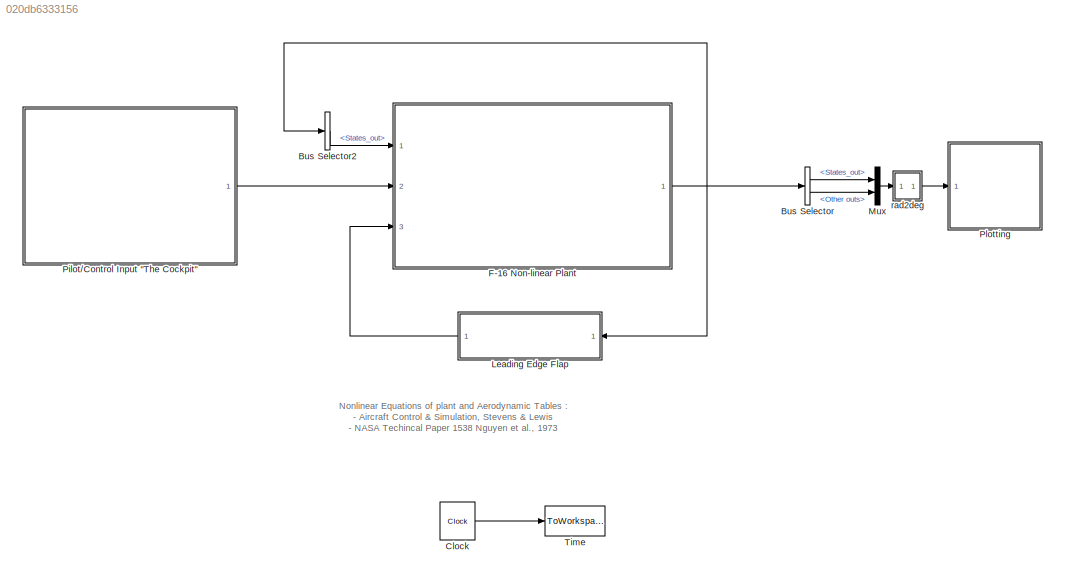
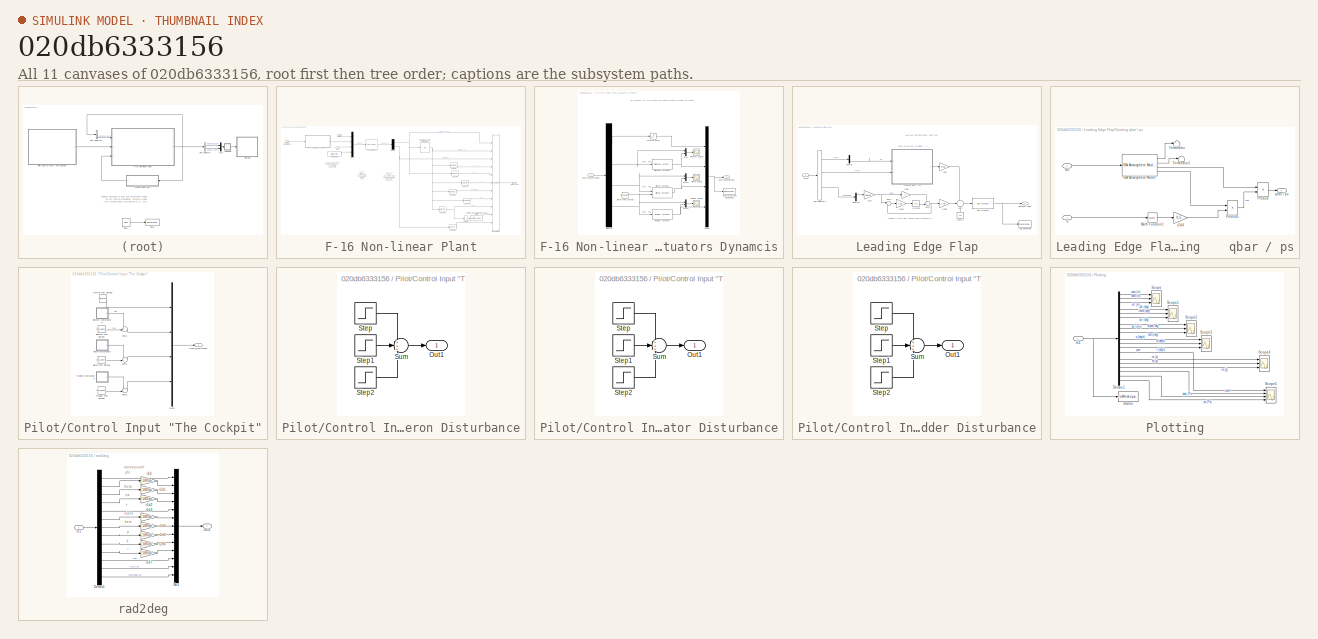
[diagram: thumbnail index - all 11 canvases of the model, root first then tree order]
MODEL slx_020db6333156
KIND model
BLOCK [BusSelector] Bus Selector
  OutputSignals = States_out,Other outs
  Ports = [1, 2]
BLOCK [BusSelector] Bus Selector2
  OutputSignals = States_out
  Ports = [1, 1]
BLOCK [Clock] Clock
  Decimation = 50
  DisplayTime = on
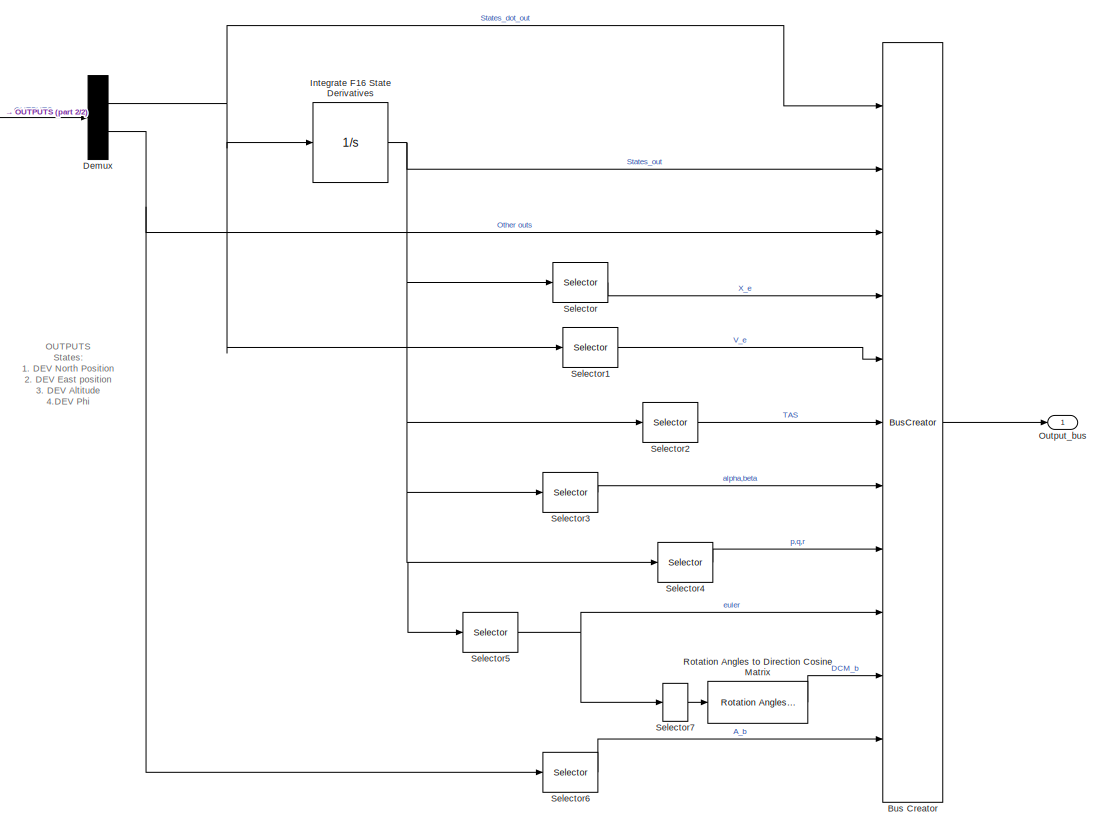
[diagram: F-16 Non-linear Plant - part 1/2, right side, full height]
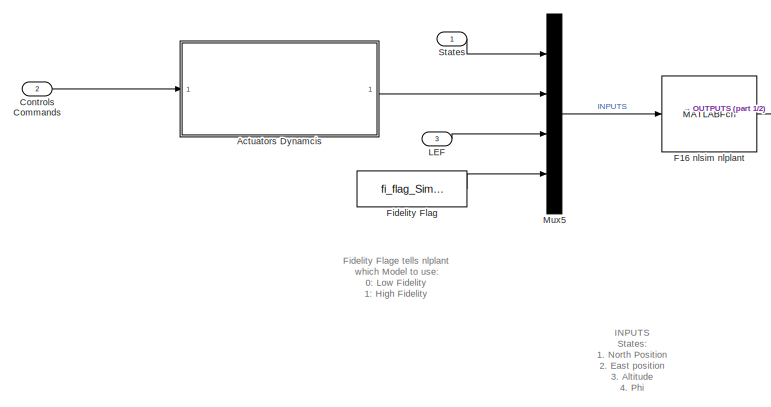
[diagram: F-16 Non-linear Plant - part 2/2, top left region]
BLOCK [SubSystem] F-16 Non-linear Plant
  FunctionWithSeparateData = off
  MaskHideContents = off
  MinAlgLoopOccurrences = off
  Opaque = off
  Ports = [3, 1]
  PropExecContextOutsideSubsystem = off
  RTWSystemCode = Auto
  RequestExecContextInheritance = off
BLOCK [SubSystem] F-16 Non-linear Plant/Actuators Dynamcis
  FunctionWithSeparateData = off
  MaskHideContents = off
  MinAlgLoopOccurrences = off
  Opaque = off
  Ports = [1, 1]
  PropExecContextOutsideSubsystem = off
  RTWSystemCode = Auto
  RequestExecContextInheritance = off
  TreatAsAtomicUnit = on
BLOCK [Reference] F-16 Non-linear Plant/Actuators Dynamcis/Aileron Actuator  REF=F16_Actuator_Library/Aileron
Actuator
  Ports = [2, 1]
  SourceBlock = F16_Actuator_Library/Aileron\nActuator
  SourceType = SubSystem
BLOCK [Scope] F-16 Non-linear Plant/Actuators Dynamcis/Aileron Scope
  DataFormat = StructureWithTime
  Floating = off
  NumInputPorts = 1
  Ports = [1]
  SampleTime = 0
  SaveName = ScopeData9
  ShowLegends = off
  TimeRange = 30
BLOCK [Constant] F-16 Non-linear Plant/Actuators Dynamcis/Aileron Trim Setting
  Value = trim_control(2)
BLOCK [ToWorkspace] F-16 Non-linear Plant/Actuators Dynamcis/Control Surface Deflections
  Decimation = 100
  MaxDataPoints = inf
  Ports = [1]
  SampleTime = -1
  VariableName = surfaces
BLOCK [Inport] F-16 Non-linear Plant/Actuators Dynamcis/Control_commands
  IconDisplay = Port number
BLOCK [Outport] F-16 Non-linear Plant/Actuators Dynamcis/Control_deflections
  IconDisplay = Port number
BLOCK [Demux] F-16 Non-linear Plant/Actuators Dynamcis/Demux
  DisplayOption = bar
  Ports = [1, 4]
BLOCK [Reference] F-16 Non-linear Plant/Actuators Dynamcis/Elevator Actuator  REF=F16_Actuator_Library/Elevator
Actuator
  Ports = [1, 1]
  SourceBlock = F16_Actuator_Library/Elevator\nActuator
  SourceType = SubSystem
BLOCK [Scope] F-16 Non-linear Plant/Actuators Dynamcis/Elevator Scope
  DataFormat = StructureWithTime
  Floating = off
  LimitDataPoints = off
  NumInputPorts = 1
  Ports = [1]
  SampleTime = 0
  SaveName = ScopeData10
  ShowLegends = off
  TimeRange = 5
  YMax = -2.05537
  YMin = -2.05537
BLOCK [Mux] F-16 Non-linear Plant/Actuators Dynamcis/Mux
  DisplayOption = bar
  Inputs = 2
  Ports = [2, 1]
BLOCK [Mux] F-16 Non-linear Plant/Actuators Dynamcis/Mux1
  DisplayOption = bar
  Inputs = 2
  Ports = [2, 1]
BLOCK [Mux] F-16 Non-linear Plant/Actuators Dynamcis/Mux2
  DisplayOption = bar
  Ports = [4, 1]
BLOCK [Mux] F-16 Non-linear Plant/Actuators Dynamcis/Mux3
  DisplayOption = bar
  Inputs = 2
  Ports = [2, 1]
BLOCK [Reference] F-16 Non-linear Plant/Actuators Dynamcis/Rudder Actuator  REF=F16_Actuator_Library/Rudder
Actuator
  Ports = [1, 1]
  SourceBlock = F16_Actuator_Library/Rudder\nActuator
  SourceType = SubSystem
BLOCK [Scope] F-16 Non-linear Plant/Actuators Dynamcis/Rudder Scope
  DataFormat = StructureWithTime
  Floating = off
  NumInputPorts = 1
  Ports = [1]
  SampleTime = 0
  SaveName = ScopeData11
  ShowLegends = off
  YMax = 0.0727808
  YMin = 0.0727808
BLOCK [Saturate] F-16 Non-linear Plant/Actuators Dynamcis/Throttle Limits
  InputPortMap = u0
  LowerLimit = 0
  Ports = [1, 1]
  UpperLimit = 1
BLOCK [BusCreator] F-16 Non-linear Plant/Bus Creator
  DisplayOption = bar
  Inputs = 11
  Ports = [11, 1]
BLOCK [Inport] F-16 Non-linear Plant/Controls Commands
  IconDisplay = Port number
  Port = 2
BLOCK [Demux] F-16 Non-linear Plant/Demux
  Outputs = [13 6]
  Ports = [1, 2]
BLOCK [MATLABFcn] F-16 Non-linear Plant/F16 nlsim nlplant
  MATLABFcn = nlplant
  OutputDimensions = 19
  OutputSignalType = real
  Ports = [1, 1]
BLOCK [Constant] F-16 Non-linear Plant/Fidelity Flag
  Value = fi_flag_Simulink
BLOCK [Integrator] F-16 Non-linear Plant/Integrate F16 State Derivatives
  InitialCondition = trim_state
  Ports = [1, 1]
BLOCK [Inport] F-16 Non-linear Plant/LEF
  IconDisplay = Port number
  Port = 3
BLOCK [Mux] F-16 Non-linear Plant/Mux5
  DisplayOption = bar
  Inputs = [13 4 1 1]
  Ports = [4, 1]
BLOCK [Outport] F-16 Non-linear Plant/Output_bus
  IconDisplay = Port number
BLOCK [Reference] F-16 Non-linear Plant/Rotation Angles to Direction Cosine Matrix  REF=aerolibtransform2/Rotation Angles to
Direction Cosine Matrix
  AttributesFormatString = Rotation Order: %<rotationOrder>
  Ports = [1, 1]
  SourceBlock = aerolibtransform2/Rotation Angles to\nDirection Cosine Matrix
  SourceType = Ang2DCM
  rotationOrder = ZYX
BLOCK [Selector] F-16 Non-linear Plant/Selector
  IndexOptions = Index vector (dialog)
  Indices = [1:3]
  InputPortWidth = 13
  OutputSizes = 1
  Ports = [1, 1]
BLOCK [Selector] F-16 Non-linear Plant/Selector1
  IndexOptions = Index vector (dialog)
  Indices = [1:3]
  InputPortWidth = 13
  OutputSizes = 1
  Ports = [1, 1]
BLOCK [Selector] F-16 Non-linear Plant/Selector2
  IndexOptions = Index vector (dialog)
  Indices = [7]
  InputPortWidth = 13
  OutputSizes = 1
  Ports = [1, 1]
BLOCK [Selector] F-16 Non-linear Plant/Selector3
  IndexOptions = Index vector (dialog)
  Indices = [8:9]
  InputPortWidth = 13
  OutputSizes = 1
  Ports = [1, 1]
BLOCK [Selector] F-16 Non-linear Plant/Selector4
  IndexOptions = Index vector (dialog)
  Indices = [10:12]
  InputPortWidth = 13
  OutputSizes = 1
  Ports = [1, 1]
BLOCK [Selector] F-16 Non-linear Plant/Selector5
  IndexOptions = Index vector (dialog)
  Indices = [4:6]
  InputPortWidth = 13
  OutputSizes = 1
  Ports = [1, 1]
BLOCK [Selector] F-16 Non-linear Plant/Selector6
  IndexOptions = Index vector (dialog)
  Indices = [1:3]
  InputPortWidth = 6
  OutputSizes = 1
  Ports = [1, 1]
BLOCK [Selector] F-16 Non-linear Plant/Selector7
  IndexOptions = Index vector (dialog)
  Indices = [3 2 1]
  InputPortWidth = 3
  OutputSizes = 1
  Ports = [1, 1]
BLOCK [Inport] F-16 Non-linear Plant/States
  IconDisplay = Port number
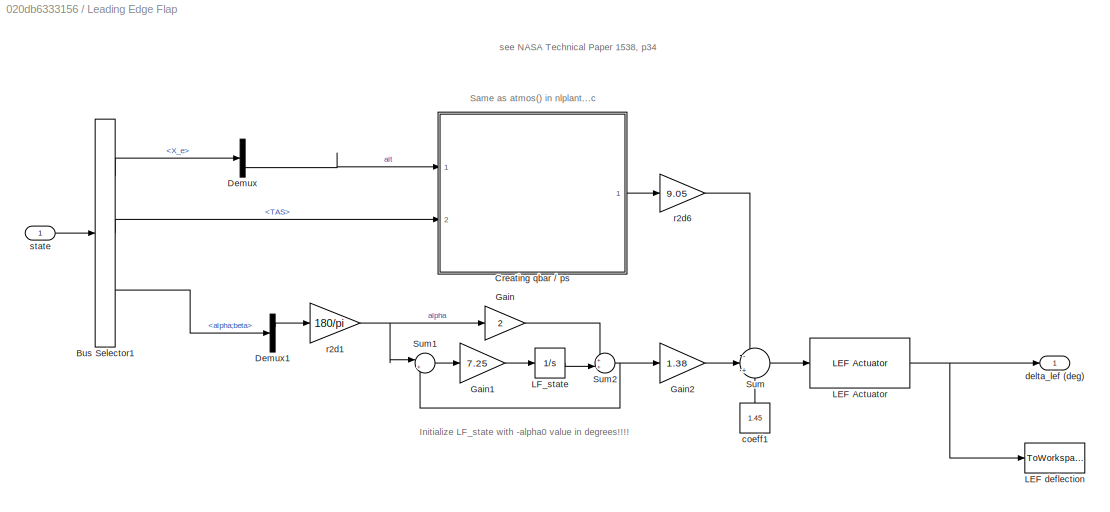
BLOCK [SubSystem] Leading Edge Flap
  FunctionWithSeparateData = off
  MaskHideContents = off
  MinAlgLoopOccurrences = off
  Opaque = off
  Ports = [1, 1]
  PropExecContextOutsideSubsystem = off
  RTWSystemCode = Auto
  RequestExecContextInheritance = off
BLOCK [BusSelector] Leading Edge Flap/Bus Selector1
  OutputSignals = X_e,TAS,alpha;beta
  Ports = [1, 3]
BLOCK [SubSystem] Leading Edge Flap/Creating    qbar // ps
  FunctionWithSeparateData = off
  MaskHideContents = off
  MinAlgLoopOccurrences = off
  Opaque = off
  Ports = [2, 1]
  PropExecContextOutsideSubsystem = off
  RTWSystemCode = Auto
  RequestExecContextInheritance = off
BLOCK [Reference] Leading Edge Flap/Creating    qbar // ps/ISA Atmosphere Model  REF=aerolibatmos2/ISA Atmosphere Model
  L = 0.0065
  P0 = 101325
  Ports = [1, 4]
  R = 287.0531
  SourceBlock = aerolibatmos2/ISA Atmosphere Model
  SourceType = International Standard Atmosphere Model
  T0 = 288.15
  custom = off
  g = 9.80665
  gamma = 1.4
  h_strat = 20000
  h_trop = 11000
  rho0 = 1.225
BLOCK [Math] Leading Edge Flap/Creating    qbar // ps/Math Function1
  Operator = square
  Ports = [1, 1]
BLOCK [Product] Leading Edge Flap/Creating    qbar // ps/Product
  Inputs = /*
  Ports = [2, 1]
  RndMeth = Floor
BLOCK [Product] Leading Edge Flap/Creating    qbar // ps/Product5
  Inputs = **
  Ports = [2, 1]
  RndMeth = Floor
BLOCK [Terminator] Leading Edge Flap/Creating    qbar // ps/Terminator
BLOCK [Terminator] Leading Edge Flap/Creating    qbar // ps/Terminator1
BLOCK [Inport] Leading Edge Flap/Creating    qbar // ps/V
  IconDisplay = Port number
  Port = 2
BLOCK [Inport] Leading Edge Flap/Creating    qbar // ps/alt
  IconDisplay = Port number
BLOCK [Outport] Leading Edge Flap/Creating    qbar // ps/qbar // ps
  IconDisplay = Port number
BLOCK [Gain] Leading Edge Flap/Creating    qbar // ps/r2d4
  Gain = 0.5
BLOCK [Demux] Leading Edge Flap/Demux
  DisplayOption = bar
  Outputs = 3
  Ports = [1, 3]
BLOCK [Demux] Leading Edge Flap/Demux1
  DisplayOption = bar
  Outputs = 2
  Ports = [1, 2]
BLOCK [Gain] Leading Edge Flap/Gain
  Gain = 2
BLOCK [Gain] Leading Edge Flap/Gain1
  Gain = 7.25
BLOCK [Gain] Leading Edge Flap/Gain2
  Gain = 1.38
BLOCK [Reference] Leading Edge Flap/LEF Actuator  REF=F16_Actuator_Library/LEF
Actuator
  Ports = [1, 1]
  SourceBlock = F16_Actuator_Library/LEF\nActuator
  SourceType = SubSystem
BLOCK [ToWorkspace] Leading Edge Flap/LEF deflection
  Decimation = 100
  MaxDataPoints = inf
  Ports = [1]
  SampleTime = -1
  VariableName = d_LF
BLOCK [Integrator] Leading Edge Flap/LF_state
  InitialCondition = -trim_state(8)*180/pi
  Ports = [1, 1]
BLOCK [Sum] Leading Edge Flap/Sum
  IconShape = round
  Inputs = -|+|+
  Ports = [3, 1]
BLOCK [Sum] Leading Edge Flap/Sum1
  IconShape = round
  Inputs = |+-
  Ports = [2, 1]
BLOCK [Sum] Leading Edge Flap/Sum2
  IconShape = round
  Inputs = ++|
  Ports = [2, 1]
BLOCK [Constant] Leading Edge Flap/coeff1
  Value = 1.45
BLOCK [Outport] Leading Edge Flap/delta_lef (deg)
  IconDisplay = Port number
BLOCK [Gain] Leading Edge Flap/r2d1
  Gain = 180/pi
BLOCK [Gain] Leading Edge Flap/r2d6
  Gain = 9.05
BLOCK [Inport] Leading Edge Flap/state
  IconDisplay = Port number
BLOCK [Mux] Mux
  DisplayOption = bar
  Inputs = 2
  Ports = [2, 1]
BLOCK [SubSystem] Pilot//Control Input "The Cockpit"
  FunctionWithSeparateData = off
  MaskHideContents = off
  MinAlgLoopOccurrences = off
  Opaque = off
  Ports = [0, 1]
  PropExecContextOutsideSubsystem = off
  RTWSystemCode = Auto
  RequestExecContextInheritance = off
BLOCK [SubSystem] Pilot//Control Input "The Cockpit"/Aileron Disturbance
  FunctionWithSeparateData = off
  MaskHideContents = off
  MinAlgLoopOccurrences = off
  Opaque = off
  Ports = [0, 1]
  PropExecContextOutsideSubsystem = off
  RTWSystemCode = Auto
  RequestExecContextInheritance = off
BLOCK [Outport] Pilot//Control Input "The Cockpit"/Aileron Disturbance/Out1
  IconDisplay = Port number
BLOCK [Step] Pilot//Control Input "The Cockpit"/Aileron Disturbance/Step
  After = DisAil_1
  SampleTime = 0
BLOCK [Step] Pilot//Control Input "The Cockpit"/Aileron Disturbance/Step1
  After = DisAil_2
  SampleTime = 0
  Time = 3
BLOCK [Step] Pilot//Control Input "The Cockpit"/Aileron Disturbance/Step2
  After = DisAil_3
  SampleTime = 0
  Time = 5
BLOCK [Sum] Pilot//Control Input "The Cockpit"/Aileron Disturbance/Sum
  IconShape = round
  Inputs = +++
  Ports = [3, 1]
BLOCK [Constant] Pilot//Control Input "The Cockpit"/Aileron Trim Setting
  Value = trim_control(2)
BLOCK [Outport] Pilot//Control Input "The Cockpit"/Control_commands
  IconDisplay = Port number
BLOCK [SubSystem] Pilot//Control Input "The Cockpit"/Elevator Disturbance
  FunctionWithSeparateData = off
  MaskHideContents = off
  MinAlgLoopOccurrences = off
  Opaque = off
  Ports = [0, 1]
  PropExecContextOutsideSubsystem = off
  RTWSystemCode = Auto
  RequestExecContextInheritance = off
BLOCK [Outport] Pilot//Control Input "The Cockpit"/Elevator Disturbance/Out1
  IconDisplay = Port number
BLOCK [Step] Pilot//Control Input "The Cockpit"/Elevator Disturbance/Step
  After = DisEle_1
  SampleTime = 0
BLOCK [Step] Pilot//Control Input "The Cockpit"/Elevator Disturbance/Step1
  After = DisEle_2
  SampleTime = 0
  Time = 3
BLOCK [Step] Pilot//Control Input "The Cockpit"/Elevator Disturbance/Step2
  After = DisEle_3
  SampleTime = 0
  Time = 5
BLOCK [Sum] Pilot//Control Input "The Cockpit"/Elevator Disturbance/Sum
  IconShape = round
  Inputs = +++
  Ports = [3, 1]
BLOCK [Constant] Pilot//Control Input "The Cockpit"/Elevator Trim Setting
  Value = trim_control(1)
  VectorParams1D = off
BLOCK [Mux] Pilot//Control Input "The Cockpit"/Mux2
  DisplayOption = bar
  Ports = [4, 1]
BLOCK [SubSystem] Pilot//Control Input "The Cockpit"/Rudder Disturbance
  FunctionWithSeparateData = off
  MaskHideContents = off
  MinAlgLoopOccurrences = off
  Opaque = off
  Ports = [0, 1]
  PropExecContextOutsideSubsystem = off
  RTWSystemCode = Auto
  RequestExecContextInheritance = off
BLOCK [Outport] Pilot//Control Input "The Cockpit"/Rudder Disturbance/Out1
  IconDisplay = Port number
BLOCK [Step] Pilot//Control Input "The Cockpit"/Rudder Disturbance/Step
  After = DisRud_1
  SampleTime = 0
BLOCK [Step] Pilot//Control Input "The Cockpit"/Rudder Disturbance/Step1
  After = DisRud_2
  SampleTime = 0
  Time = 3
BLOCK [Step] Pilot//Control Input "The Cockpit"/Rudder Disturbance/Step2
  After = DisRud_3
  SampleTime = 0
  Time = 5
BLOCK [Sum] Pilot//Control Input "The Cockpit"/Rudder Disturbance/Sum
  IconShape = round
  Inputs = +++
  Ports = [3, 1]
BLOCK [Constant] Pilot//Control Input "The Cockpit"/Rudder Trim Setting
  Value = trim_control(3)
BLOCK [Sum] Pilot//Control Input "The Cockpit"/Sum1
  IconShape = round
  Inputs = ++|
  Ports = [2, 1]
BLOCK [Sum] Pilot//Control Input "The Cockpit"/Sum2
  IconShape = round
  Inputs = ++|
  Ports = [2, 1]
BLOCK [Sum] Pilot//Control Input "The Cockpit"/Sum3
  IconShape = round
  Inputs = ++|
  Ports = [2, 1]
BLOCK [Constant] Pilot//Control Input "The Cockpit"/throttle Trim Setting
  Value = trim_throttle
BLOCK [SubSystem] Plotting
  FunctionWithSeparateData = off
  MaskHideContents = off
  MinAlgLoopOccurrences = off
  Opaque = off
  Ports = [1]
  PropExecContextOutsideSubsystem = off
  RTWSystemCode = Auto
  RequestExecContextInheritance = off
BLOCK [Demux] Plotting/Demux1
  Outputs = 19
  Ports = [1, 19]
BLOCK [Inport] Plotting/In1
  IconDisplay = Port number
BLOCK [Scope] Plotting/Scope
  DataFormat = StructureWithTime
  Decimation = 20
  Floating = off
  LimitDataPoints = off
  NumInputPorts = 3
  Ports = [3]
  SampleTime = 0
  ShowLegends = off
  YMax = 13700~8.75e-11~13320
  YMin = 12100~6e-11~13235
BLOCK [Scope] Plotting/Scope1
  DataFormat = StructureWithTime
  Decimation = 20
  Floating = off
  LimitDataPoints = off
  NumInputPorts = 3
  Ports = [3]
  SampleTime = 0
  SaveName = ScopeData1
  ShowLegends = off
  TimeRange = 10
  YMax = -0.000465~3.88952~-0.000275
  YMin = -0.000525~3.88949~-0.00034
BLOCK [Scope] Plotting/Scope2
  DataFormat = StructureWithTime
  Decimation = 20
  Floating = off
  LimitDataPoints = off
  NumInputPorts = 3
  Ports = [3]
  SampleTime = 0
  SaveName = ScopeData2
  ShowLegends = off
  YMax = 160.001~3.89042~-0.337004
  YMin = 160~3.89041~-0.337005
  ZoomMode = xonly
BLOCK [Scope] Plotting/Scope3
  DataFormat = StructureWithTime
  Decimation = 20
  Floating = off
  LimitDataPoints = off
  NumInputPorts = 3
  Ports = [3]
  SampleTime = 0
  SaveName = ScopeData3
  ShowLegends = off
  YMax = 5~5~5
  YMin = -5~-5~-5
BLOCK [Scope] Plotting/Scope4
  DataFormat = StructureWithTime
  Decimation = 20
  Floating = off
  LimitDataPoints = off
  NumInputPorts = 3
  Ports = [3]
  SampleTime = 0
  SaveName = ScopeData4
  ShowLegends = off
  YMax = 5~5~5
  YMin = -5~-5~-5
BLOCK [Scope] Plotting/Scope5
  DataFormat = StructureWithTime
  Floating = off
  LegendLocations = 0.89053     0.91569     0.11694    0.030669\n0.88383       0.683     0.12594    0.030669\n0.86822      0.4503     0.14693    0.030669\n0.87603     0.21908     0.13643    0.030669
  NumInputPorts = 4
  Ports = [4]
  SampleTime = 0
  SaveName = ScopeData5
  ShowLegends = on
  YMax = 13.2562~0.507~10600~58900
  YMin = 13.2562~0.495~10000~58450
BLOCK [ToWorkspace] Plotting/States
  Decimation = 100
  MaxDataPoints = inf
  Ports = [1]
  SampleTime = -1
  VariableName = y_sim
BLOCK [ToWorkspace] Time
  Decimation = 100
  MaxDataPoints = inf
  Ports = [1]
  SampleTime = -1
  VariableName = T
BLOCK [SubSystem] rad2deg
  FunctionWithSeparateData = off
  MaskHideContents = off
  MinAlgLoopOccurrences = off
  Opaque = off
  Ports = [1, 1]
  PropExecContextOutsideSubsystem = off
  RTWSystemCode = Auto
  RequestExecContextInheritance = off
BLOCK [Demux] rad2deg/Demux1
  Outputs = [3 1 1 1 1 1 1 1 1 1 1 3 3]
  Ports = [1, 13]
BLOCK [Inport] rad2deg/In1
  IconDisplay = Port number
BLOCK [Mux] rad2deg/Mux
  DisplayOption = bar
  Inputs = [3 1 1 1 1 1 1 1 1 1 1 3 3]
  Ports = [13, 1]
BLOCK [Outport] rad2deg/Out1
  IconDisplay = Port number
BLOCK [Gain] rad2deg/r2d
  Gain = 180/pi
BLOCK [Gain] rad2deg/r2d1
  Gain = 180/pi
BLOCK [Gain] rad2deg/r2d2
  Gain = 180/pi
BLOCK [Gain] rad2deg/r2d3
  Gain = 180/pi
BLOCK [Gain] rad2deg/r2d4
  Gain = 180/pi
BLOCK [Gain] rad2deg/r2d5
  Gain = 180/pi
BLOCK [Gain] rad2deg/r2d6
  Gain = 180/pi
BLOCK [Gain] rad2deg/r2d7
  Gain = 180/pi
ANNOTATION (root): Nonlinear Equations of plant and Aerodynamic Tables : - Aircraft Control & Simulation, Stevens & Lewis - NASA Techincal Paper 1538 Nguyen et al., 1973
ANNOTATION F-16 Non-linear Plant: Fidelity Flage tells nlplant which Model to use: 0: Low Fidelity 1: High Fidelity
ANNOTATION F-16 Non-linear Plant: INPUTS States: 1. North Position 2. East position 3. Altitude 4. Phi 5. Theta 6. Psi 7. Total velocity 8. alpha in rad 9. beta in rads 10. P 11. Q 12. R 13. POW Controls: 14. Thrust 15. Elevator in deg 16. Ailerons in deg 17. Rudder in deg 18. LEF in deg 19. Fidelity Flag
ANNOTATION F-16 Non-linear Plant: OUTPUTS States: 1. DEV North Position 2. DEV East position 3. DEV Altitude 4.DEV Phi 5. DEV Theta 6. DEV Psi 7. DEV Total velocity 8.DEV alpha in rad 9.DEV beta in rads 10. DEV P 11. DEV Q 12. DEV R 13. DEV POW Other outputs: Accels of CG: 14. anx_cg 15. any_cg 16. anz_cg 17. mach 18. qbar 19. ps Static Pressure
ANNOTATION F-16 Non-linear Plant/Actuators Dynamcis: No dynamics for thrttle since the engine dynamics is inside the model
ANNOTATION F-16 Non-linear Plant/Actuators Dynamcis: Units: deg.
ANNOTATION Leading Edge Flap: Initialize LF_state with -alpha0 value in degrees!!!!
ANNOTATION Leading Edge Flap: Same as atmos() in nlplant...c
ANNOTATION Leading Edge Flap: see NASA Technical Paper 1538, p34
ANNOTATION rad2deg: alpha
ANNOTATION rad2deg: beta
ANNOTATION rad2deg: npos,epos,alt
ANNOTATION rad2deg: p
ANNOTATION rad2deg: phi
ANNOTATION rad2deg: psi
ANNOTATION rad2deg: q
ANNOTATION rad2deg: r
ANNOTATION rad2deg: theta
ANNOTATION rad2deg: v
LINE Bus Selector2:1 -> F-16 Non-linear Plant:1
LINE Bus Selector:1 -> Mux:1
LINE Bus Selector:2 -> Mux:2
LINE Clock:1 -> Time:1
NET F-16 Non-linear Plant/Actuators Dynamcis/Aileron Actuator:1 -> F-16 Non-linear Plant/Actuators Dynamcis/Mux1:2, F-16 Non-linear Plant/Actuators Dynamcis/Mux2:3
LINE F-16 Non-linear Plant/Actuators Dynamcis/Aileron Trim Setting:1 -> F-16 Non-linear Plant/Actuators Dynamcis/Aileron Actuator:2
LINE F-16 Non-linear Plant/Actuators Dynamcis/Control_commands:1 -> F-16 Non-linear Plant/Actuators Dynamcis/Demux:1
LINE F-16 Non-linear Plant/Actuators Dynamcis/Demux:1 -> F-16 Non-linear Plant/Actuators Dynamcis/Throttle Limits:1
NET F-16 Non-linear Plant/Actuators Dynamcis/Demux:2 -> F-16 Non-linear Plant/Actuators Dynamcis/Elevator Actuator:1, F-16 Non-linear Plant/Actuators Dynamcis/Mux:1
NET F-16 Non-linear Plant/Actuators Dynamcis/Demux:3 -> F-16 Non-linear Plant/Actuators Dynamcis/Aileron Actuator:1, F-16 Non-linear Plant/Actuators Dynamcis/Mux1:1
NET F-16 Non-linear Plant/Actuators Dynamcis/Demux:4 -> F-16 Non-linear Plant/Actuators Dynamcis/Mux3:1, F-16 Non-linear Plant/Actuators Dynamcis/Rudder Actuator:1
NET F-16 Non-linear Plant/Actuators Dynamcis/Elevator Actuator:1 -> F-16 Non-linear Plant/Actuators Dynamcis/Mux2:2, F-16 Non-linear Plant/Actuators Dynamcis/Mux:2
LINE F-16 Non-linear Plant/Actuators Dynamcis/Mux1:1 -> F-16 Non-linear Plant/Actuators Dynamcis/Aileron Scope:1
NET F-16 Non-linear Plant/Actuators Dynamcis/Mux2:1 -> F-16 Non-linear Plant/Actuators Dynamcis/Control Surface Deflections:1, F-16 Non-linear Plant/Actuators Dynamcis/Control_deflections:1
LINE F-16 Non-linear Plant/Actuators Dynamcis/Mux3:1 -> F-16 Non-linear Plant/Actuators Dynamcis/Rudder Scope:1
LINE F-16 Non-linear Plant/Actuators Dynamcis/Mux:1 -> F-16 Non-linear Plant/Actuators Dynamcis/Elevator Scope:1
NET F-16 Non-linear Plant/Actuators Dynamcis/Rudder Actuator:1 -> F-16 Non-linear Plant/Actuators Dynamcis/Mux2:4, F-16 Non-linear Plant/Actuators Dynamcis/Mux3:2
LINE F-16 Non-linear Plant/Actuators Dynamcis/Throttle Limits:1 -> F-16 Non-linear Plant/Actuators Dynamcis/Mux2:1
LINE F-16 Non-linear Plant/Actuators Dynamcis:1 -> F-16 Non-linear Plant/Mux5:2
LINE F-16 Non-linear Plant/Bus Creator:1 -> F-16 Non-linear Plant/Output_bus:1
LINE F-16 Non-linear Plant/Controls Commands:1 -> F-16 Non-linear Plant/Actuators Dynamcis:1
NET F-16 Non-linear Plant/Demux:1 -> F-16 Non-linear Plant/Bus Creator:1, F-16 Non-linear Plant/Integrate F16 State Derivatives:1, F-16 Non-linear Plant/Selector1:1
NET F-16 Non-linear Plant/Demux:2 -> F-16 Non-linear Plant/Bus Creator:3, F-16 Non-linear Plant/Selector6:1
LINE F-16 Non-linear Plant/F16 nlsim nlplant:1 -> F-16 Non-linear Plant/Demux:1
LINE F-16 Non-linear Plant/Fidelity Flag:1 -> F-16 Non-linear Plant/Mux5:4
NET F-16 Non-linear Plant/Integrate F16 State Derivatives:1 -> F-16 Non-linear Plant/Bus Creator:2, F-16 Non-linear Plant/Selector2:1, F-16 Non-linear Plant/Selector3:1, F-16 Non-linear Plant/Selector4:1, F-16 Non-linear Plant/Selector5:1, F-16 Non-linear Plant/Selector:1
LINE F-16 Non-linear Plant/LEF:1 -> F-16 Non-linear Plant/Mux5:3
LINE F-16 Non-linear Plant/Mux5:1 -> F-16 Non-linear Plant/F16 nlsim nlplant:1
LINE F-16 Non-linear Plant/Rotation Angles to Direction Cosine Matrix:1 -> F-16 Non-linear Plant/Bus Creator:10
LINE F-16 Non-linear Plant/Selector1:1 -> F-16 Non-linear Plant/Bus Creator:5
LINE F-16 Non-linear Plant/Selector2:1 -> F-16 Non-linear Plant/Bus Creator:6
LINE F-16 Non-linear Plant/Selector3:1 -> F-16 Non-linear Plant/Bus Creator:7
LINE F-16 Non-linear Plant/Selector4:1 -> F-16 Non-linear Plant/Bus Creator:8
NET F-16 Non-linear Plant/Selector5:1 -> F-16 Non-linear Plant/Bus Creator:9, F-16 Non-linear Plant/Selector7:1
LINE F-16 Non-linear Plant/Selector6:1 -> F-16 Non-linear Plant/Bus Creator:11
LINE F-16 Non-linear Plant/Selector7:1 -> F-16 Non-linear Plant/Rotation Angles to Direction Cosine Matrix:1
LINE F-16 Non-linear Plant/Selector:1 -> F-16 Non-linear Plant/Bus Creator:4
LINE F-16 Non-linear Plant/States:1 -> F-16 Non-linear Plant/Mux5:1
NET F-16 Non-linear Plant:1 -> Bus Selector2:1, Bus Selector:1, Leading Edge Flap:1
LINE Leading Edge Flap/Bus Selector1:1 -> Leading Edge Flap/Demux:1
LINE Leading Edge Flap/Bus Selector1:2 -> Leading Edge Flap/Creating    qbar // ps:2
LINE Leading Edge Flap/Bus Selector1:3 -> Leading Edge Flap/Demux1:1
LINE Leading Edge Flap/Creating    qbar // ps/ISA Atmosphere Model:1 -> Leading Edge Flap/Creating    qbar // ps/Terminator:1
LINE Leading Edge Flap/Creating    qbar // ps/ISA Atmosphere Model:2 -> Leading Edge Flap/Creating    qbar // ps/Terminator1:1
LINE Leading Edge Flap/Creating    qbar // ps/ISA Atmosphere Model:3 -> Leading Edge Flap/Creating    qbar // ps/Product:1
LINE Leading Edge Flap/Creating    qbar // ps/ISA Atmosphere Model:4 -> Leading Edge Flap/Creating    qbar // ps/Product5:1
LINE Leading Edge Flap/Creating    qbar // ps/Math Function1:1 -> Leading Edge Flap/Creating    qbar // ps/r2d4:1
LINE Leading Edge Flap/Creating    qbar // ps/Product5:1 -> Leading Edge Flap/Creating    qbar // ps/Product:2
LINE Leading Edge Flap/Creating    qbar // ps/Product:1 -> Leading Edge Flap/Creating    qbar // ps/qbar // ps:1
LINE Leading Edge Flap/Creating    qbar // ps/V:1 -> Leading Edge Flap/Creating    qbar // ps/Math Function1:1
LINE Leading Edge Flap/Creating    qbar // ps/alt:1 -> Leading Edge Flap/Creating    qbar // ps/ISA Atmosphere Model:1
LINE Leading Edge Flap/Creating    qbar // ps/r2d4:1 -> Leading Edge Flap/Creating    qbar // ps/Product5:2
LINE Leading Edge Flap/Creating    qbar // ps:1 -> Leading Edge Flap/r2d6:1
LINE Leading Edge Flap/Demux1:1 -> Leading Edge Flap/r2d1:1
LINE Leading Edge Flap/Demux:3 -> Leading Edge Flap/Creating    qbar // ps:1
LINE Leading Edge Flap/Gain1:1 -> Leading Edge Flap/LF_state:1
LINE Leading Edge Flap/Gain2:1 -> Leading Edge Flap/Sum:2
LINE Leading Edge Flap/Gain:1 -> Leading Edge Flap/Sum2:1
NET Leading Edge Flap/LEF Actuator:1 -> Leading Edge Flap/LEF deflection:1, Leading Edge Flap/delta_lef (deg):1
LINE Leading Edge Flap/LF_state:1 -> Leading Edge Flap/Sum2:2
LINE Leading Edge Flap/Sum1:1 -> Leading Edge Flap/Gain1:1
NET Leading Edge Flap/Sum2:1 -> Leading Edge Flap/Gain2:1, Leading Edge Flap/Sum1:2
LINE Leading Edge Flap/Sum:1 -> Leading Edge Flap/LEF Actuator:1
LINE Leading Edge Flap/coeff1:1 -> Leading Edge Flap/Sum:3
NET Leading Edge Flap/r2d1:1 -> Leading Edge Flap/Gain:1, Leading Edge Flap/Sum1:1
LINE Leading Edge Flap/r2d6:1 -> Leading Edge Flap/Sum:1
LINE Leading Edge Flap/state:1 -> Leading Edge Flap/Bus Selector1:1
LINE Leading Edge Flap:1 -> F-16 Non-linear Plant:3
LINE Mux:1 -> rad2deg:1
LINE Pilot//Control Input "The Cockpit"/Aileron Disturbance/Step1:1 -> Pilot//Control Input "The Cockpit"/Aileron Disturbance/Sum:2
LINE Pilot//Control Input "The Cockpit"/Aileron Disturbance/Step2:1 -> Pilot//Control Input "The Cockpit"/Aileron Disturbance/Sum:3
LINE Pilot//Control Input "The Cockpit"/Aileron Disturbance/Step:1 -> Pilot//Control Input "The Cockpit"/Aileron Disturbance/Sum:1
LINE Pilot//Control Input "The Cockpit"/Aileron Disturbance/Sum:1 -> Pilot//Control Input "The Cockpit"/Aileron Disturbance/Out1:1
LINE Pilot//Control Input "The Cockpit"/Aileron Disturbance:1 -> Pilot//Control Input "The Cockpit"/Sum2:1
LINE Pilot//Control Input "The Cockpit"/Aileron Trim Setting:1 -> Pilot//Control Input "The Cockpit"/Sum2:2
LINE Pilot//Control Input "The Cockpit"/Elevator Disturbance/Step1:1 -> Pilot//Control Input "The Cockpit"/Elevator Disturbance/Sum:2
LINE Pilot//Control Input "The Cockpit"/Elevator Disturbance/Step2:1 -> Pilot//Control Input "The Cockpit"/Elevator Disturbance/Sum:3
LINE Pilot//Control Input "The Cockpit"/Elevator Disturbance/Step:1 -> Pilot//Control Input "The Cockpit"/Elevator Disturbance/Sum:1
LINE Pilot//Control Input "The Cockpit"/Elevator Disturbance/Sum:1 -> Pilot//Control Input "The Cockpit"/Elevator Disturbance/Out1:1
LINE Pilot//Control Input "The Cockpit"/Elevator Disturbance:1 -> Pilot//Control Input "The Cockpit"/Sum1:1
LINE Pilot//Control Input "The Cockpit"/Elevator Trim Setting:1 -> Pilot//Control Input "The Cockpit"/Sum1:2
LINE Pilot//Control Input "The Cockpit"/Mux2:1 -> Pilot//Control Input "The Cockpit"/Control_commands:1
LINE Pilot//Control Input "The Cockpit"/Rudder Disturbance/Step1:1 -> Pilot//Control Input "The Cockpit"/Rudder Disturbance/Sum:2
LINE Pilot//Control Input "The Cockpit"/Rudder Disturbance/Step2:1 -> Pilot//Control Input "The Cockpit"/Rudder Disturbance/Sum:3
LINE Pilot//Control Input "The Cockpit"/Rudder Disturbance/Step:1 -> Pilot//Control Input "The Cockpit"/Rudder Disturbance/Sum:1
LINE Pilot//Control Input "The Cockpit"/Rudder Disturbance/Sum:1 -> Pilot//Control Input "The Cockpit"/Rudder Disturbance/Out1:1
LINE Pilot//Control Input "The Cockpit"/Rudder Disturbance:1 -> Pilot//Control Input "The Cockpit"/Sum3:1
LINE Pilot//Control Input "The Cockpit"/Rudder Trim Setting:1 -> Pilot//Control Input "The Cockpit"/Sum3:2
LINE Pilot//Control Input "The Cockpit"/Sum1:1 -> Pilot//Control Input "The Cockpit"/Mux2:2
LINE Pilot//Control Input "The Cockpit"/Sum2:1 -> Pilot//Control Input "The Cockpit"/Mux2:3
LINE Pilot//Control Input "The Cockpit"/Sum3:1 -> Pilot//Control Input "The Cockpit"/Mux2:4
LINE Pilot//Control Input "The Cockpit"/throttle Trim Setting:1 -> Pilot//Control Input "The Cockpit"/Mux2:1
LINE Pilot//Control Input "The Cockpit":1 -> F-16 Non-linear Plant:2
LINE Plotting/Demux1:1 -> Plotting/Scope:1
LINE Plotting/Demux1:10 -> Plotting/Scope3:1
LINE Plotting/Demux1:11 -> Plotting/Scope3:2
LINE Plotting/Demux1:12 -> Plotting/Scope3:3
LINE Plotting/Demux1:13 -> Plotting/Scope5:1
LINE Plotting/Demux1:14 -> Plotting/Scope4:1
LINE Plotting/Demux1:15 -> Plotting/Scope4:2
LINE Plotting/Demux1:16 -> Plotting/Scope4:3
LINE Plotting/Demux1:17 -> Plotting/Scope5:2
LINE Plotting/Demux1:18 -> Plotting/Scope5:3
LINE Plotting/Demux1:19 -> Plotting/Scope5:4
LINE Plotting/Demux1:2 -> Plotting/Scope:2
LINE Plotting/Demux1:3 -> Plotting/Scope:3
LINE Plotting/Demux1:4 -> Plotting/Scope1:1
LINE Plotting/Demux1:5 -> Plotting/Scope1:2
LINE Plotting/Demux1:6 -> Plotting/Scope1:3
LINE Plotting/Demux1:7 -> Plotting/Scope2:1
LINE Plotting/Demux1:8 -> Plotting/Scope2:2
LINE Plotting/Demux1:9 -> Plotting/Scope2:3
NET Plotting/In1:1 -> Plotting/Demux1:1, Plotting/States:1
LINE rad2deg/Demux1:1 -> rad2deg/Mux:1
LINE rad2deg/Demux1:10 -> rad2deg/r2d7:1
LINE rad2deg/Demux1:11 -> rad2deg/Mux:11
LINE rad2deg/Demux1:12 -> rad2deg/Mux:12
LINE rad2deg/Demux1:13 -> rad2deg/Mux:13
LINE rad2deg/Demux1:2 -> rad2deg/r2d:1
LINE rad2deg/Demux1:3 -> rad2deg/r2d1:1
LINE rad2deg/Demux1:4 -> rad2deg/r2d2:1
LINE rad2deg/Demux1:5 -> rad2deg/Mux:5
LINE rad2deg/Demux1:6 -> rad2deg/r2d3:1
LINE rad2deg/Demux1:7 -> rad2deg/r2d4:1
LINE rad2deg/Demux1:8 -> rad2deg/r2d5:1
LINE rad2deg/Demux1:9 -> rad2deg/r2d6:1
LINE rad2deg/In1:1 -> rad2deg/Demux1:1
LINE rad2deg/Mux:1 -> rad2deg/Out1:1
LINE rad2deg/r2d1:1 -> rad2deg/Mux:3
LINE rad2deg/r2d2:1 -> rad2deg/Mux:4
LINE rad2deg/r2d3:1 -> rad2deg/Mux:6
LINE rad2deg/r2d4:1 -> rad2deg/Mux:7
LINE rad2deg/r2d5:1 -> rad2deg/Mux:8
LINE rad2deg/r2d6:1 -> rad2deg/Mux:9
LINE rad2deg/r2d7:1 -> rad2deg/Mux:10
LINE rad2deg/r2d:1 -> rad2deg/Mux:2
LINE rad2deg:1 -> Plotting:1
note: NET lines group one-source signal fan-out (src -> all destinations, sorted); 1:1 wires keep LINE
